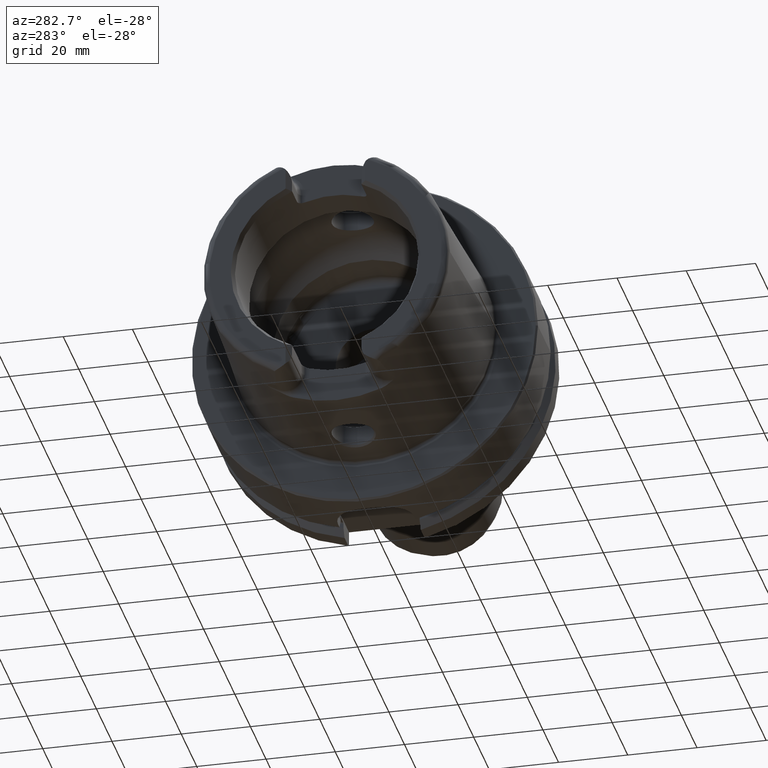
[diagram: clean part render]
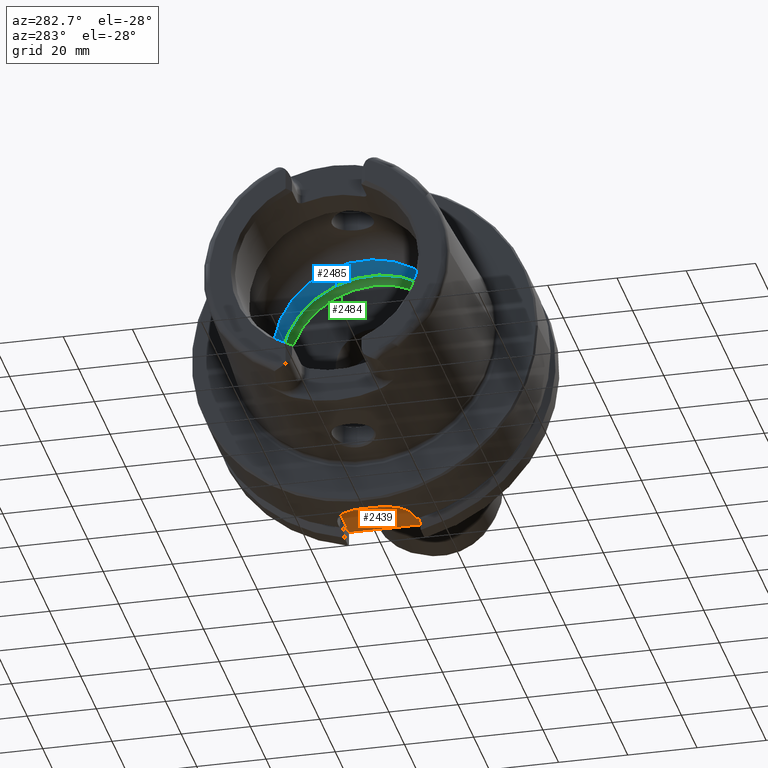
[diagram: same view with three faces highlighted in distinct colors, each labeled with its STEP entity id]
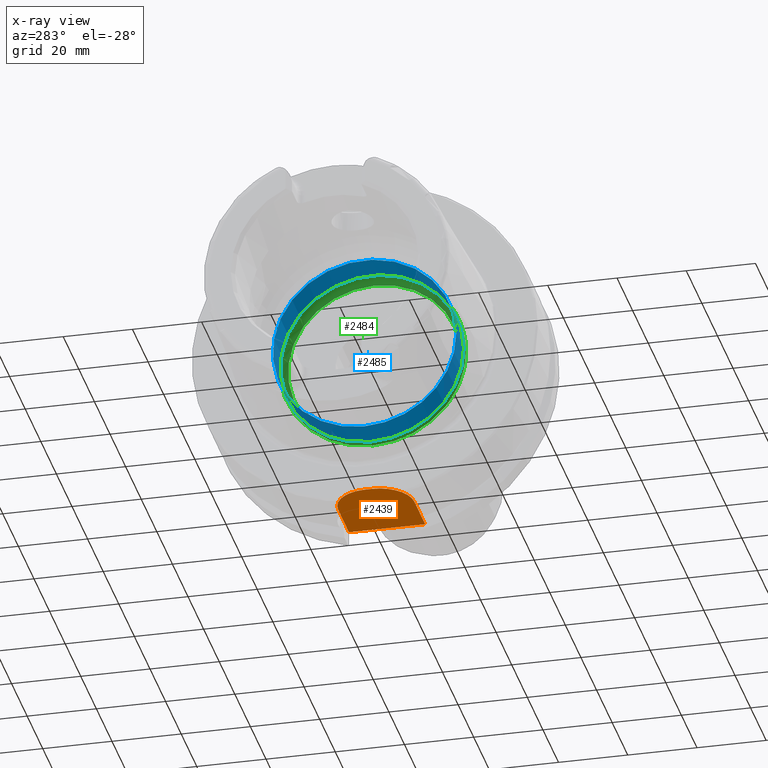
[diagram: x-ray of the same camera — body ghosted, the three highlighted faces saturated]
A machine part, auxiliary view with three faces highlighted in distinct colors.
The next image is the same camera in x-ray (body ghosted, the three faces saturated) — at least one of them is partly hidden behind the body in this view.
Their STEP definitions:

[orange] entity #2439 — the highlighted planar face has unit normal (0, 0, 1).
#108=PLANE('',#2703);
#218=CIRCLE('',#2698,10.);
#219=CIRCLE('',#2701,10.);
#379=FACE_OUTER_BOUND('',#537,.T.);
#537=EDGE_LOOP('',(#2025,#2026,#2027,#2028,#2029,#2030));
#703=LINE('',#3989,#825);
#761=LINE('',#5150,#883);
#773=LINE('',#5244,#895);
#775=LINE('',#5250,#897);
#825=VECTOR('',#2989,10.);
#883=VECTOR('',#3253,10.);
#895=VECTOR('',#3271,10.);
#897=VECTOR('',#3279,10.);
#993=VERTEX_POINT('',#3986);
#994=VERTEX_POINT('',#3988);
#1124=VERTEX_POINT('',#5149);
#1132=VERTEX_POINT('',#5190);
#1133=VERTEX_POINT('',#5192);
#1142=VERTEX_POINT('',#5246);
#1268=EDGE_CURVE('',#993,#994,#703,.T.);
#1440=EDGE_CURVE('',#994,#1124,#761,.T.);
#1451=EDGE_CURVE('',#1132,#1133,#218,.T.);
#1462=EDGE_CURVE('',#1133,#993,#773,.T.);
#1463=EDGE_CURVE('',#1124,#1142,#219,.T.);
#1465=EDGE_CURVE('',#1142,#1132,#775,.T.);
#2025=ORIENTED_EDGE('',*,*,#1465,.F.);
#2026=ORIENTED_EDGE('',*,*,#1463,.F.);
#2027=ORIENTED_EDGE('',*,*,#1440,.F.);
#2028=ORIENTED_EDGE('',*,*,#1268,.F.);
#2029=ORIENTED_EDGE('',*,*,#1462,.F.);
#2030=ORIENTED_EDGE('',*,*,#1451,.F.);
#2439=ADVANCED_FACE('',(#379),#108,.F.);
#2698=AXIS2_PLACEMENT_3D('',#5193,#3262,#3263);
#2701=AXIS2_PLACEMENT_3D('',#5247,#3274,#3275);
#2703=AXIS2_PLACEMENT_3D('',#5251,#3280,#3281);
#2989=DIRECTION('',(0.,1.,0.));
#3253=DIRECTION('',(-1.,-1.58603289232165E-16,0.));
#3262=DIRECTION('center_axis',(0.,0.,1.));
#3263=DIRECTION('ref_axis',(-1.,-2.4980018054066E-16,0.));
#3271=DIRECTION('',(1.,1.58603289232165E-16,0.));
#3274=DIRECTION('center_axis',(0.,0.,1.));
#3275=DIRECTION('ref_axis',(-2.22044604925031E-16,1.,0.));
#3279=DIRECTION('',(0.,-1.,0.));
#3280=DIRECTION('center_axis',(0.,0.,1.));
#3281=DIRECTION('ref_axis',(1.,0.,0.));
#3986=CARTESIAN_POINT('',(29.,-11.,-44.));
#3988=CARTESIAN_POINT('',(29.,11.,-44.));
#3989=CARTESIAN_POINT('',(29.,-5.55111512312578E-16,-44.));
#5149=CARTESIAN_POINT('',(15.,11.,-44.));
#5150=CARTESIAN_POINT('',(29.,11.,-44.));
#5190=CARTESIAN_POINT('',(4.99999999999999,-1.00000000000001,-44.));
#5192=CARTESIAN_POINT('',(15.,-11.,-44.));
#5193=CARTESIAN_POINT('Origin',(15.,-1.,-44.));
#5244=CARTESIAN_POINT('',(15.,-11.,-44.));
#5246=CARTESIAN_POINT('',(4.99999999999999,0.999999999999997,-44.));
#5247=CARTESIAN_POINT('Origin',(15.,1.,-44.));
#5250=CARTESIAN_POINT('',(4.99999999999999,0.999999999999997,-44.));
#5251=CARTESIAN_POINT('Origin',(17.,-1.11022302462516E-15,-44.));

[blue] entity #2485 — the highlighted cylindrical surface (bore or boss wall) has radius 26.5 mm, axis along (-1, 0, 0).
#196=CIRCLE('',#2658,26.5);
#197=CIRCLE('',#2659,26.5);
#261=CIRCLE('',#2790,26.5);
#262=CIRCLE('',#2791,26.5);
#425=FACE_OUTER_BOUND('',#586,.T.);
#586=EDGE_LOOP('',(#2246,#2247,#2248,#2249,#2250,#2251));
#797=LINE('',#5483,#919);
#919=VECTOR('',#3481,26.5);
#1075=VERTEX_POINT('',#4835);
#1076=VERTEX_POINT('',#4836);
#1174=VERTEX_POINT('',#5477);
#1175=VERTEX_POINT('',#5479);
#1374=EDGE_CURVE('',#1075,#1076,#196,.T.);
#1375=EDGE_CURVE('',#1076,#1075,#197,.T.);
#1538=EDGE_CURVE('',#1174,#1175,#261,.T.);
#1539=EDGE_CURVE('',#1175,#1174,#262,.T.);
#1540=EDGE_CURVE('',#1175,#1075,#797,.T.);
#2246=ORIENTED_EDGE('',*,*,#1539,.F.);
#2247=ORIENTED_EDGE('',*,*,#1540,.T.);
#2248=ORIENTED_EDGE('',*,*,#1374,.T.);
#2249=ORIENTED_EDGE('',*,*,#1375,.T.);
#2250=ORIENTED_EDGE('',*,*,#1540,.F.);
#2251=ORIENTED_EDGE('',*,*,#1538,.F.);
#2359=CYLINDRICAL_SURFACE('',#2792,26.5);
#2485=ADVANCED_FACE('',(#425),#2359,.F.);
#2658=AXIS2_PLACEMENT_3D('',#4837,#3153,#3154);
#2659=AXIS2_PLACEMENT_3D('',#4838,#3155,#3156);
#2790=AXIS2_PLACEMENT_3D('',#5480,#3475,#3476);
#2791=AXIS2_PLACEMENT_3D('',#5481,#3477,#3478);
#2792=AXIS2_PLACEMENT_3D('',#5482,#3479,#3480);
#3153=DIRECTION('center_axis',(-1.,0.,0.));
#3154=DIRECTION('ref_axis',(0.,0.,1.));
#3155=DIRECTION('center_axis',(-1.,0.,0.));
#3156=DIRECTION('ref_axis',(0.,0.,1.));
#3475=DIRECTION('center_axis',(-1.,0.,0.));
#3476=DIRECTION('ref_axis',(0.,0.,1.));
#3477=DIRECTION('center_axis',(-1.,0.,0.));
#3478=DIRECTION('ref_axis',(0.,0.,1.));
#3479=DIRECTION('center_axis',(-1.,0.,0.));
#3480=DIRECTION('ref_axis',(0.,1.,0.));
#3481=DIRECTION('',(-1.,0.,0.));
#4835=CARTESIAN_POINT('',(0.,-26.5,3.24531401774049E-15));
#4836=CARTESIAN_POINT('',(0.,-3.24531401774049E-15,-26.5));
#4837=CARTESIAN_POINT('Origin',(0.,0.,0.));
#4838=CARTESIAN_POINT('Origin',(0.,0.,0.));
#5477=CARTESIAN_POINT('',(9.3,-3.24531401774049E-15,-26.5));
#5479=CARTESIAN_POINT('',(9.3,-26.5,3.24531401774049E-15));
#5480=CARTESIAN_POINT('Origin',(9.3,0.,0.));
#5481=CARTESIAN_POINT('Origin',(9.3,0.,0.));
#5482=CARTESIAN_POINT('Origin',(4.65,0.,0.));
#5483=CARTESIAN_POINT('',(4.65,-26.5,3.24531401774049E-15));

[green] entity #2484 — the highlighted toroidal blend (fillet) surface has major radius 24.9 mm and minor (blend) radius 2 mm.
#55=TOROIDAL_SURFACE('',#2788,24.9,2.);
#259=CIRCLE('',#2787,24.9);
#260=CIRCLE('',#2789,2.);
#261=CIRCLE('',#2790,26.5);
#262=CIRCLE('',#2791,26.5);
#424=FACE_OUTER_BOUND('',#585,.T.);
#585=EDGE_LOOP('',(#2241,#2242,#2243,#2244,#2245));
#1173=VERTEX_POINT('',#5474);
#1174=VERTEX_POINT('',#5477);
#1175=VERTEX_POINT('',#5479);
#1536=EDGE_CURVE('',#1173,#1173,#259,.T.);
#1537=EDGE_CURVE('',#1173,#1174,#260,.T.);
#1538=EDGE_CURVE('',#1174,#1175,#261,.T.);
#1539=EDGE_CURVE('',#1175,#1174,#262,.T.);
#2241=ORIENTED_EDGE('',*,*,#1536,.F.);
#2242=ORIENTED_EDGE('',*,*,#1537,.T.);
#2243=ORIENTED_EDGE('',*,*,#1538,.T.);
#2244=ORIENTED_EDGE('',*,*,#1539,.T.);
#2245=ORIENTED_EDGE('',*,*,#1537,.F.);
#2484=ADVANCED_FACE('',(#424),#55,.F.);
#2787=AXIS2_PLACEMENT_3D('',#5475,#3469,#3470);
#2788=AXIS2_PLACEMENT_3D('',#5476,#3471,#3472);
#2789=AXIS2_PLACEMENT_3D('',#5478,#3473,#3474);
#2790=AXIS2_PLACEMENT_3D('',#5480,#3475,#3476);
#2791=AXIS2_PLACEMENT_3D('',#5481,#3477,#3478);
#3469=DIRECTION('center_axis',(-1.,0.,0.));
#3470=DIRECTION('ref_axis',(0.,0.,1.));
#3471=DIRECTION('center_axis',(-1.,0.,0.));
#3472=DIRECTION('ref_axis',(0.,0.,1.));
#3473=DIRECTION('center_axis',(0.,1.,-1.22464679914735E-16));
#3474=DIRECTION('ref_axis',(0.,-1.22464679914735E-16,-1.));
#3475=DIRECTION('center_axis',(-1.,0.,0.));
#3476=DIRECTION('ref_axis',(0.,0.,1.));
#3477=DIRECTION('center_axis',(-1.,0.,0.));
#3478=DIRECTION('ref_axis',(0.,0.,1.));
#5474=CARTESIAN_POINT('',(12.5,-3.04937052987691E-15,-24.9));
#5475=CARTESIAN_POINT('Origin',(12.5,0.,0.));
#5476=CARTESIAN_POINT('Origin',(10.5,0.,0.));
#5477=CARTESIAN_POINT('',(9.3,-3.24531401774049E-15,-26.5));
#5478=CARTESIAN_POINT('Origin',(10.5,-3.04937052987691E-15,-24.9));
#5479=CARTESIAN_POINT('',(9.3,-26.5,3.24531401774049E-15));
#5480=CARTESIAN_POINT('Origin',(9.3,0.,0.));
#5481=CARTESIAN_POINT('Origin',(9.3,0.,0.));